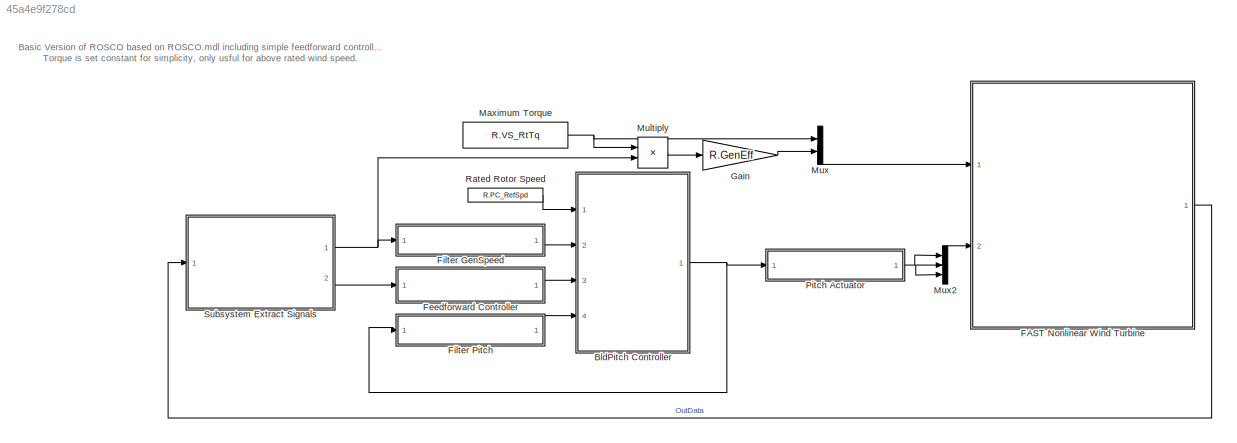
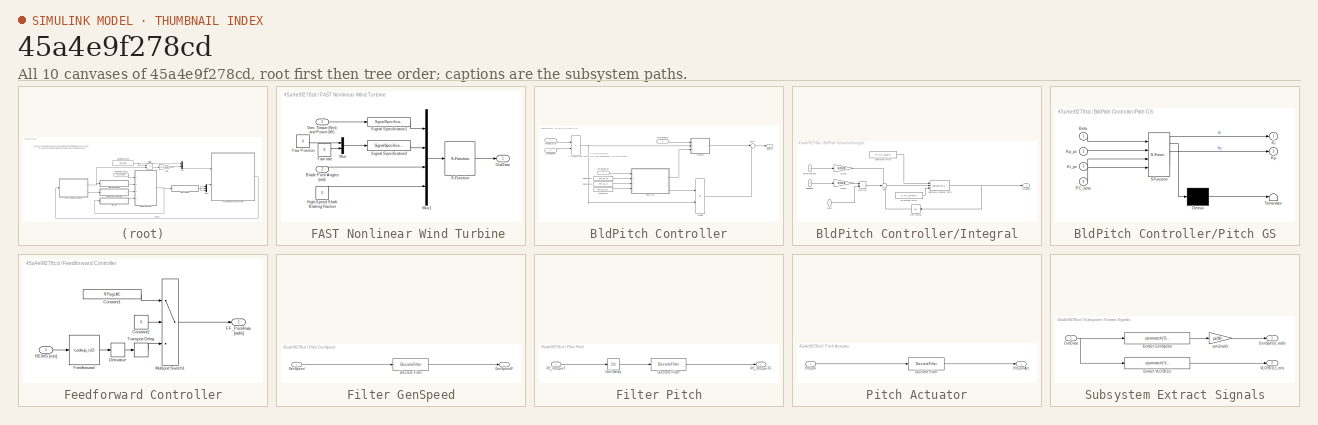
[diagram: thumbnail index - all 10 canvases of the model, root first then tree order]
MODEL slx_45a4e9f278cd
KIND model
CONFIG AbsTol = auto
CONFIG EnableMultiTasking = off
CONFIG FixedStep = DT
CONFIG MaxStep = auto
CONFIG MinStep = auto
CONFIG RelTol = 1e-3
CONFIG SampleTimeConstraint = Unconstrained
CONFIG SolverName = ode4
CONFIG StartTime = 0.0
CONFIG StopTime = TMax
BLOCK [SubSystem]   FAST Nonlinear Wind Turbine
  Ports = [2, 1]
  RequestExecContextInheritance = off
BLOCK [Inport]   FAST Nonlinear Wind Turbine/Blade Pitch Angles (rad)
  Port = 2
BLOCK [Inport]   FAST Nonlinear Wind Turbine/Gen. Torque (Nm) and Power (W)
BLOCK [Constant]   FAST Nonlinear Wind Turbine/High-Speed Shaft Braking Fraction
  Value = 0
BLOCK [Mux]   FAST Nonlinear Wind Turbine/Mux
  DisplayOption = bar
  Inputs = 2
  Ports = [2, 1]
BLOCK [Mux]   FAST Nonlinear Wind Turbine/Mux1
  DisplayOption = bar
  Ports = [4, 1]
BLOCK [Outport]   FAST Nonlinear Wind Turbine/OutData
BLOCK [S-Function]   FAST Nonlinear Wind Turbine/S-Function
  EnableBusSupport = off
  FunctionName = FAST_SFunc
  Parameters = FAST_InputFileName, TMax, 0
  Ports = [1, 1]
  SFcnIsStateOwnerBlock = off
  SFunctionDeploymentMode = off
BLOCK [SignalSpecification]   FAST Nonlinear Wind Turbine/Signal Specification1
  Dimensions = 2
  OutDataTypeStr = double
  SignalType = real
BLOCK [SignalSpecification]   FAST Nonlinear Wind Turbine/Signal Specification2
  Dimensions = 2
  OutDataTypeStr = double
  SignalType = real
BLOCK [Constant]   FAST Nonlinear Wind Turbine/Yaw Position
  Value = 0
BLOCK [Constant]   FAST Nonlinear Wind Turbine/Yaw rate
  Value = 0
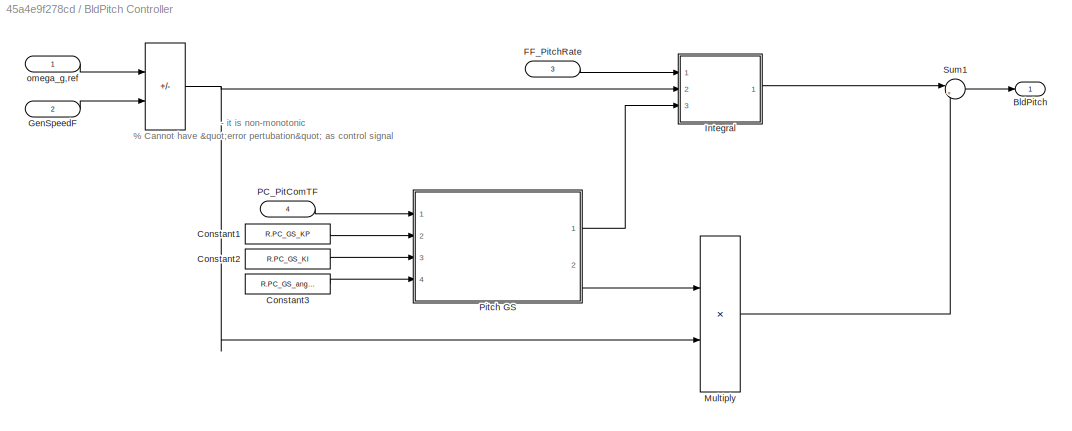
BLOCK [SubSystem] BldPitch Controller
  Ports = [4, 1]
  RequestExecContextInheritance = off
BLOCK [Outport] BldPitch Controller/BldPitch
  VectorParamsAs1DForOutWhenUnconnected = off
BLOCK [Constant] BldPitch Controller/Constant1
  Value = R.PC_GS_KP
BLOCK [Constant] BldPitch Controller/Constant2
  Value = R.PC_GS_KI
BLOCK [Constant] BldPitch Controller/Constant3
  Value = R.PC_GS_angles
BLOCK [Inport] BldPitch Controller/FF_PitchRate
  NameLocation = top
  Port = 3
BLOCK [Inport] BldPitch Controller/GenSpeedF
  NameLocation = top
  Port = 2
BLOCK [SubSystem] BldPitch Controller/Integral
  Ports = [3, 1]
  RequestExecContextInheritance = off
BLOCK [Inport] BldPitch Controller/Integral/FF_PitchRate
BLOCK [Inport] BldPitch Controller/Integral/Gain
  Port = 3
BLOCK [Gain] BldPitch Controller/Integral/Gain1
  Gain = simu.dt
BLOCK [Gain] BldPitch Controller/Integral/Gain2
  Gain = simu.dt
BLOCK [Outport] BldPitch Controller/Integral/IntSpdErr
  VectorParamsAs1DForOutWhenUnconnected = off
BLOCK [Constant] BldPitch Controller/Integral/Maximum Pitch
  NameLocation = top
  Value = R.PC_MaxPit
BLOCK [Constant] BldPitch Controller/Integral/Minimum Pitch
  NameLocation = top
  Value = R.PC_MinPit
BLOCK [Product] BldPitch Controller/Integral/Multiply
  Ports = [2, 1]
BLOCK [Reference] BldPitch Controller/Integral/Saturate Integral Term  REF=simulink/Discontinuities/Saturation
Dynamic
  Ports = [3, 1]
  SourceBlock = simulink/Discontinuities/Saturation\nDynamic
  SourceProductBaseCode = SL
  SourceType = Saturation Dynamic
BLOCK [Inport] BldPitch Controller/Integral/SpeedErr
  Port = 2
BLOCK [Sum] BldPitch Controller/Integral/Sum
  Inputs = +++
  Ports = [3, 1]
BLOCK [UnitDelay] BldPitch Controller/Integral/Unit Delay
  HasFrameUpgradeWarning = on
  InitialCondition = GetFASTPar(P.EDP,'BlPitch(1)')/180*pi
  NameLocation = top
  SampleTime = -1
BLOCK [Product] BldPitch Controller/Multiply
  Ports = [2, 1]
BLOCK [Inport] BldPitch Controller/PC_PitComTF
  NameLocation = top
  Port = 4
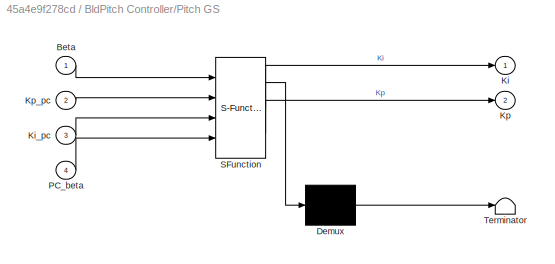
BLOCK [SubSystem] BldPitch Controller/Pitch GS
  ErrorFcn = Stateflow.Translate.translate
  PermitHierarchicalResolution = ExplicitOnly
  Ports = [4, 2]
  RequestExecContextInheritance = off
  SFBlockType = MATLAB Function
  TreatAsAtomicUnit = on
BLOCK [Demux] BldPitch Controller/Pitch GS/ Demux 
  Outputs = 1
  Ports = [1, 1]
BLOCK [S-Function] BldPitch Controller/Pitch GS/ SFunction 
  EnableBusSupport = on
  FunctionName = sf_sfun
  PortCounts = [4 3]
  Ports = [4, 3]
  SFcnIsStateOwnerBlock = off
  SFunctionDeploymentMode = off
  Tag = Stateflow S-Function 6
BLOCK [Terminator] BldPitch Controller/Pitch GS/ Terminator 
BLOCK [Inport] BldPitch Controller/Pitch GS/Beta
BLOCK [Outport] BldPitch Controller/Pitch GS/Ki
  VectorParamsAs1DForOutWhenUnconnected = off
BLOCK [Inport] BldPitch Controller/Pitch GS/Ki_pc
  Port = 3
BLOCK [Outport] BldPitch Controller/Pitch GS/Kp
  Port = 2
  VectorParamsAs1DForOutWhenUnconnected = off
BLOCK [Inport] BldPitch Controller/Pitch GS/Kp_pc
  Port = 2
BLOCK [Inport] BldPitch Controller/Pitch GS/PC_beta
  Port = 4
BLOCK [Sum] BldPitch Controller/Sum
  IconShape = rectangular
  Inputs = +-
  Ports = [2, 1]
BLOCK [Sum] BldPitch Controller/Sum1
  Inputs = |++
  Ports = [2, 1]
BLOCK [Inport] BldPitch Controller/omega_g,ref
  NameLocation = top
BLOCK [SubSystem] Feedforward Controller
  Ports = [1, 1]
  RequestExecContextInheritance = off
BLOCK [Constant] Feedforward Controller/Constant1
  Value = R.FlagLAC
BLOCK [Constant] Feedforward Controller/Constant2
  Value = 0
BLOCK [Derivative] Feedforward Controller/Derivative
BLOCK [Outport] Feedforward Controller/FF_PitchRate [rad//s]
  VectorParamsAs1DForOutWhenUnconnected = off
BLOCK [Lookup_n-D] Feedforward Controller/Feedforward
  BreakpointsForDimension1 = R.StaticWind
  InputPortMap = u0
  InternalRulePriority = Speed
  NumberOfTableDimensions = 1
  Ports = [1, 1]
  RndMeth = Simplest
  Table = R.StaticPitch
BLOCK [MultiPortSwitch] Feedforward Controller/Multiport Switch1
  DataPortIndices = {0,1}
  DataPortOrder = Specify indices
  InputSameDT = off
  Inputs = 2
  Ports = [3, 1]
  SaturateOnIntegerOverflow = off
BLOCK [Inport] Feedforward Controller/REWS [m//s]
BLOCK [TransportDelay] Feedforward Controller/Transport Delay
  DelayTime = R.T_buffer
  Ports = [1, 1]
BLOCK [SubSystem] Filter GenSpeed
  Ports = [1, 1]
  RequestExecContextInheritance = off
BLOCK [DiscreteFilter] Filter GenSpeed/Discrete Filter
  Denominator = F.HSS.a
  InitialStates = R.PC_RefSpd/(sum(F.HSS.a(2:end))+1)
  InputPortMap = u0
  Numerator = F.HSS.b
  Ports = [1, 1]
BLOCK [Inport] Filter GenSpeed/GenSpeed
BLOCK [Outport] Filter GenSpeed/GenSpeedF
  VectorParamsAs1DForOutWhenUnconnected = off
BLOCK [SubSystem] Filter Pitch
  Ports = [1, 1]
  RequestExecContextInheritance = off
BLOCK [DiscreteFilter] Filter Pitch/Discrete Filter
  Denominator = F.P.a
  InputPortMap = u0
  Numerator = F.P.b
  Ports = [1, 1]
BLOCK [Inport] Filter Pitch/PC_PitComT
BLOCK [Outport] Filter Pitch/PC_PitComTF
  VectorParamsAs1DForOutWhenUnconnected = off
BLOCK [UnitDelay] Filter Pitch/Unit Delay
  HasFrameUpgradeWarning = on
  SampleTime = -1
BLOCK [Gain] Gain
  Gain = R.GenEff
BLOCK [Constant] Maximum Torque
  NameLocation = top
  Value = R.VS_RtTq
BLOCK [Product] Multiply
  Ports = [2, 1]
BLOCK [Mux] Mux
  DisplayOption = bar
  Inputs = 2
  Ports = [2, 1]
BLOCK [Mux] Mux2
  DisplayOption = bar
  Inputs = 3
  Ports = [3, 1]
BLOCK [SubSystem] Pitch Actuator
  Ports = [1, 1]
  RequestExecContextInheritance = off
BLOCK [DiscreteFilter] Pitch Actuator/Discrete Filter
  Denominator = F.F_PitchAct.a
  InitialStates = GetFASTPar(P.EDP,'BlPitch(1)')/180*pi/(sum(F.F_PitchAct.a(2:end))+1)
  InputPortMap = u0
  Numerator = F.F_PitchAct.b
  Ports = [1, 1]
BLOCK [Inport] Pitch Actuator/PitCom
BLOCK [Outport] Pitch Actuator/PitComAct
  VectorParamsAs1DForOutWhenUnconnected = off
BLOCK [Constant] Rated Rotor Speed
  Value = R.PC_RefSpd
BLOCK [SubSystem] Subsystem Extract Signals
  Ports = [1, 2]
  RequestExecContextInheritance = off
BLOCK [Fcn] Subsystem Extract Signals/Extract GenSpeed
  Expr = u(strmatch('GenSpeed',OutList))
BLOCK [Fcn] Subsystem Extract Signals/Extract VLOS01LI
  Expr = u(strmatch('VLOS01LI',OutList))
BLOCK [Outport] Subsystem Extract Signals/GenSpeed_rad//s
  VectorParamsAs1DForOutWhenUnconnected = off
BLOCK [Inport] Subsystem Extract Signals/OutData
BLOCK [Outport] Subsystem Extract Signals/VLOS01LI_m//s
  Port = 2
  VectorParamsAs1DForOutWhenUnconnected = off
BLOCK [Gain] Subsystem Extract Signals/rpm2rad//s
  Gain = pi/30
ANNOTATION (root): Basic Version of ROSCO based on ROSCO.mdl including simple feedforward controller to reproduce similar results as by RunExample.m. Torque is set constant for simplicity, only usful for above rated wind speed.
ANNOTATION BldPitch Controller: % Cannot have "error pertubation" as control signal - it is non-monotonic
LINE   FAST Nonlinear Wind Turbine/Blade Pitch Angles (rad):1 ->   FAST Nonlinear Wind Turbine/Mux1:3
LINE   FAST Nonlinear Wind Turbine/Gen. Torque (Nm) and Power (W):1 ->   FAST Nonlinear Wind Turbine/Signal Specification1:1
LINE   FAST Nonlinear Wind Turbine/High-Speed Shaft Braking Fraction:1 ->   FAST Nonlinear Wind Turbine/Mux1:4
LINE   FAST Nonlinear Wind Turbine/Mux1:1 ->   FAST Nonlinear Wind Turbine/S-Function:1
LINE   FAST Nonlinear Wind Turbine/Mux:1 ->   FAST Nonlinear Wind Turbine/Signal Specification2:1
LINE   FAST Nonlinear Wind Turbine/S-Function:1 ->   FAST Nonlinear Wind Turbine/OutData:1
LINE   FAST Nonlinear Wind Turbine/Signal Specification1:1 ->   FAST Nonlinear Wind Turbine/Mux1:1
LINE   FAST Nonlinear Wind Turbine/Signal Specification2:1 ->   FAST Nonlinear Wind Turbine/Mux1:2
LINE   FAST Nonlinear Wind Turbine/Yaw Position:1 ->   FAST Nonlinear Wind Turbine/Mux:1
LINE   FAST Nonlinear Wind Turbine/Yaw rate:1 ->   FAST Nonlinear Wind Turbine/Mux:2
LINE   FAST Nonlinear Wind Turbine:1 -> Subsystem Extract Signals:1
LINE BldPitch Controller/Constant1:1 -> BldPitch Controller/Pitch GS:2
LINE BldPitch Controller/Constant2:1 -> BldPitch Controller/Pitch GS:3
LINE BldPitch Controller/Constant3:1 -> BldPitch Controller/Pitch GS:4
LINE BldPitch Controller/FF_PitchRate:1 -> BldPitch Controller/Integral:1
LINE BldPitch Controller/GenSpeedF:1 -> BldPitch Controller/Sum:2
LINE BldPitch Controller/Integral/FF_PitchRate:1 -> BldPitch Controller/Integral/Gain2:1
LINE BldPitch Controller/Integral/Gain1:1 -> BldPitch Controller/Integral/Multiply:1
LINE BldPitch Controller/Integral/Gain2:1 -> BldPitch Controller/Integral/Sum:1
LINE BldPitch Controller/Integral/Gain:1 -> BldPitch Controller/Integral/Multiply:2
LINE BldPitch Controller/Integral/Maximum Pitch:1 -> BldPitch Controller/Integral/Saturate Integral Term:1
LINE BldPitch Controller/Integral/Minimum Pitch:1 -> BldPitch Controller/Integral/Saturate Integral Term:3
LINE BldPitch Controller/Integral/Multiply:1 -> BldPitch Controller/Integral/Sum:2
NET BldPitch Controller/Integral/Saturate Integral Term:1 -> BldPitch Controller/Integral/IntSpdErr:1, BldPitch Controller/Integral/Unit Delay:1
LINE BldPitch Controller/Integral/SpeedErr:1 -> BldPitch Controller/Integral/Gain1:1
LINE BldPitch Controller/Integral/Sum:1 -> BldPitch Controller/Integral/Saturate Integral Term:2
LINE BldPitch Controller/Integral/Unit Delay:1 -> BldPitch Controller/Integral/Sum:3
LINE BldPitch Controller/Integral:1 -> BldPitch Controller/Sum1:1
LINE BldPitch Controller/Multiply:1 -> BldPitch Controller/Sum1:2
LINE BldPitch Controller/PC_PitComTF:1 -> BldPitch Controller/Pitch GS:1
LINE BldPitch Controller/Pitch GS:1 -> BldPitch Controller/Integral:3
LINE BldPitch Controller/Pitch GS:2 -> BldPitch Controller/Multiply:1
LINE BldPitch Controller/Sum1:1 -> BldPitch Controller/BldPitch:1
NET BldPitch Controller/Sum:1 -> BldPitch Controller/Integral:2, BldPitch Controller/Multiply:2
LINE BldPitch Controller/omega_g,ref:1 -> BldPitch Controller/Sum:1
NET BldPitch Controller:1 -> Filter Pitch:1, Pitch Actuator:1
LINE Feedforward Controller/Constant1:1 -> Feedforward Controller/Multiport Switch1:1
LINE Feedforward Controller/Constant2:1 -> Feedforward Controller/Multiport Switch1:2
LINE Feedforward Controller/Derivative:1 -> Feedforward Controller/Transport Delay:1
LINE Feedforward Controller/Feedforward:1 -> Feedforward Controller/Derivative:1
LINE Feedforward Controller/Multiport Switch1:1 -> Feedforward Controller/FF_PitchRate [rad//s]:1
LINE Feedforward Controller/REWS [m//s]:1 -> Feedforward Controller/Feedforward:1
LINE Feedforward Controller/Transport Delay:1 -> Feedforward Controller/Multiport Switch1:3
LINE Feedforward Controller:1 -> BldPitch Controller:3
LINE Filter GenSpeed/Discrete Filter:1 -> Filter GenSpeed/GenSpeedF:1
LINE Filter GenSpeed/GenSpeed:1 -> Filter GenSpeed/Discrete Filter:1
LINE Filter GenSpeed:1 -> BldPitch Controller:2
LINE Filter Pitch/Discrete Filter:1 -> Filter Pitch/PC_PitComTF:1
LINE Filter Pitch/PC_PitComT:1 -> Filter Pitch/Unit Delay:1
LINE Filter Pitch/Unit Delay:1 -> Filter Pitch/Discrete Filter:1
LINE Filter Pitch:1 -> BldPitch Controller:4
LINE Gain:1 -> Mux:2
NET Maximum Torque:1 -> Multiply:1, Mux:1
LINE Multiply:1 -> Gain:1
LINE Mux2:1 ->   FAST Nonlinear Wind Turbine:2
LINE Mux:1 ->   FAST Nonlinear Wind Turbine:1
LINE Pitch Actuator/Discrete Filter:1 -> Pitch Actuator/PitComAct:1
LINE Pitch Actuator/PitCom:1 -> Pitch Actuator/Discrete Filter:1
NET Pitch Actuator:1 -> Mux2:1, Mux2:2, Mux2:3
LINE Rated Rotor Speed:1 -> BldPitch Controller:1
LINE Subsystem Extract Signals/Extract GenSpeed:1 -> Subsystem Extract Signals/rpm2rad//s:1
LINE Subsystem Extract Signals/Extract VLOS01LI:1 -> Subsystem Extract Signals/VLOS01LI_m//s:1
NET Subsystem Extract Signals/OutData:1 -> Subsystem Extract Signals/Extract GenSpeed:1, Subsystem Extract Signals/Extract VLOS01LI:1
LINE Subsystem Extract Signals/rpm2rad//s:1 -> Subsystem Extract Signals/GenSpeed_rad//s:1
NET Subsystem Extract Signals:1 -> Filter GenSpeed:1, Multiply:2
LINE Subsystem Extract Signals:2 -> Feedforward Controller:1
note: NET lines group one-source signal fan-out (src -> all destinations, sorted); 1:1 wires keep LINE
CHART BldPitch Controller/Pitch GS states=1 transitions=1
  STATE_LABEL 'eML_blk_kernel()'
  STATE_LABEL 'SCRIPT:\n function [Ki, Kp] = GainSchedule(Beta, Kp_pc, Ki_pc,  PC_beta)\n\n% This function calculates the current gains for a Collective Blade Pitch \n% controller\n%\n% Inputs: v - Current wind speed estimate, m/s.\n%         ContParam - Structure of control parameters, output from\n%                     ControlParameters.m\n%\n% Outputs: Kp - Proportional Gain\n%          Ki - Integral Gain\n%\n% Nikhar Abb...<+639ch>'
CHART  states=0 transitions=0
